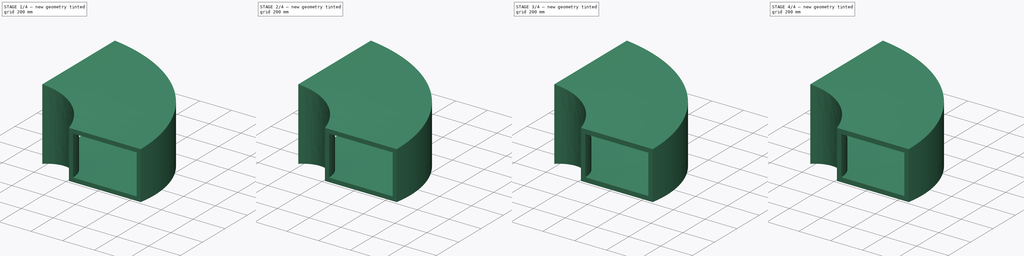
[diagram: build sequence overview — one tinted view per stage of 4, left to right]
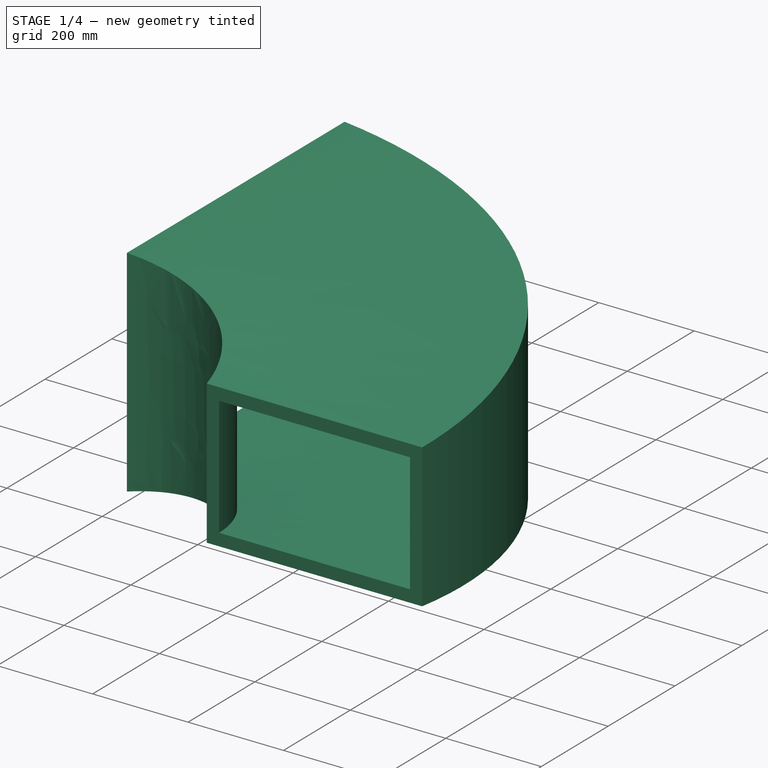
[diagram: stage 1 of 4 — iso view after this stage's code; geometry added in this stage tinted green]
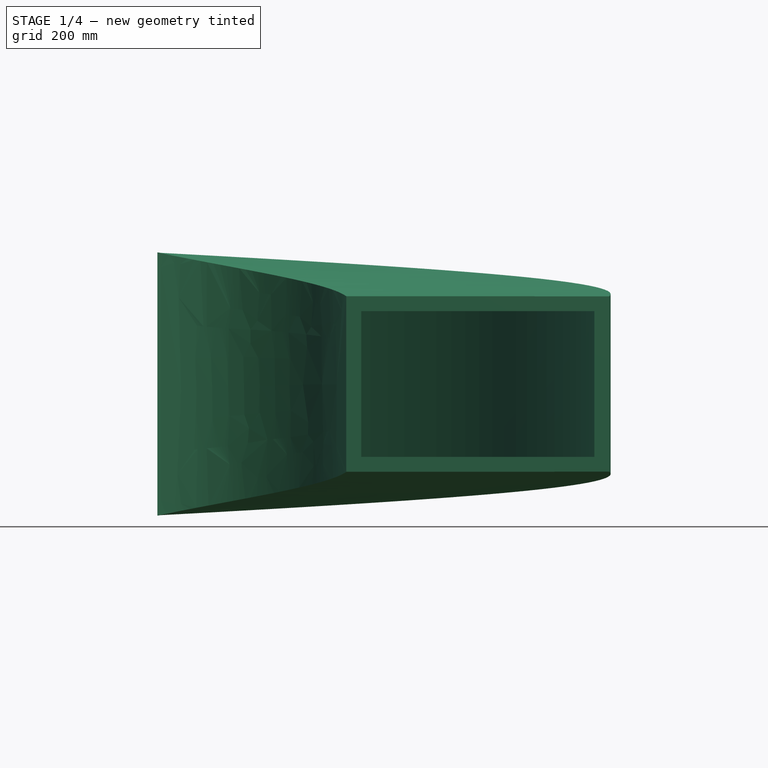
[diagram: stage 1 of 4 — front view after this stage's code; geometry added in this stage tinted green]
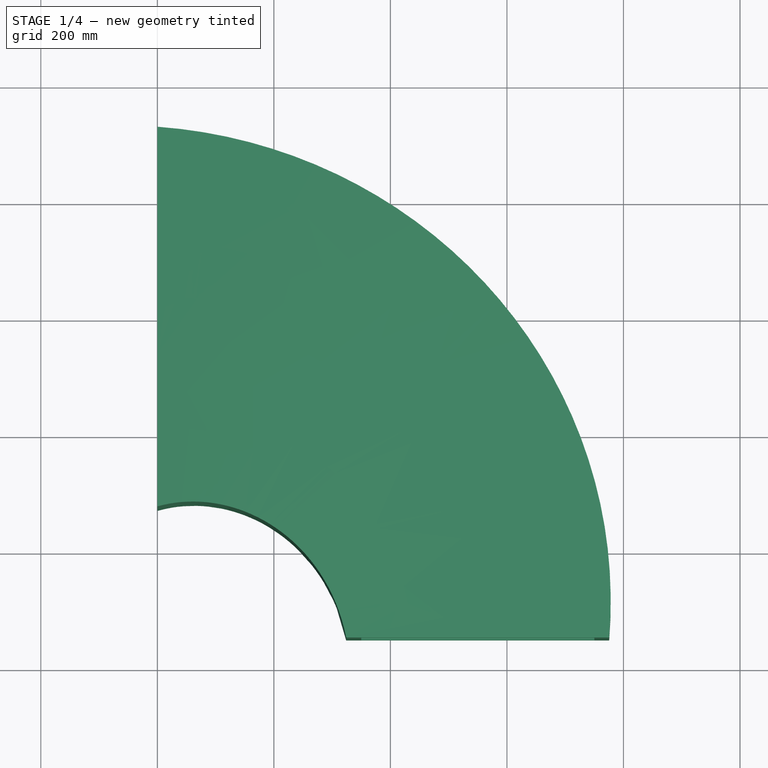
[diagram: stage 1 of 4 — top view after this stage's code; geometry added in this stage tinted green]
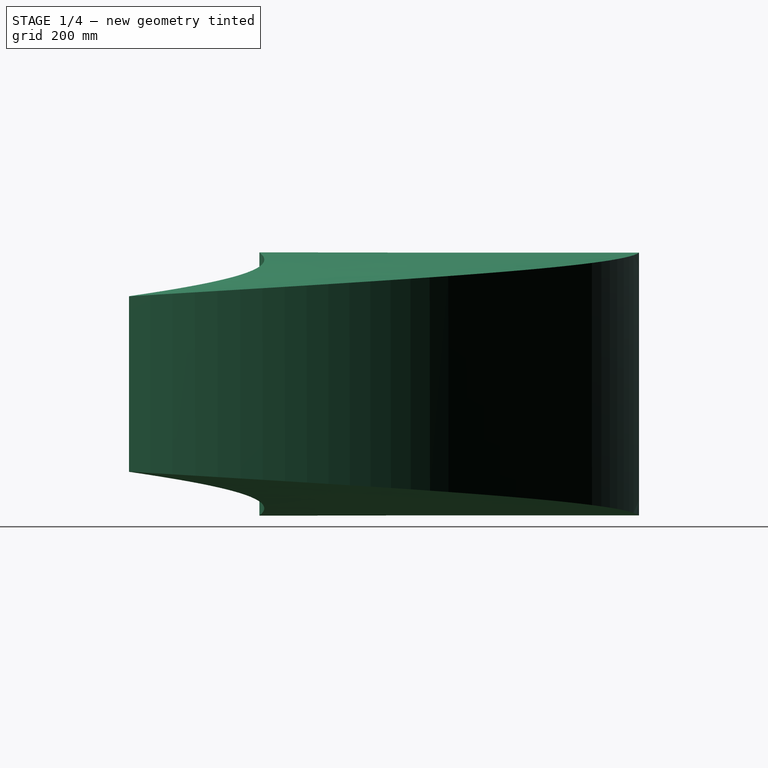
[diagram: stage 1 of 4 — right view after this stage's code; geometry added in this stage tinted green]
FCSTD DOCUMENT  (FreeCAD 0.16R6704 (Git))
Label: Radius_elbow_transition
License: All rights reserved
LicenseURL: http://en.wikipedia.org/wiki/All_rights_reserved
objects: App::DocumentObjectGroup×7, Sketcher::SketchObject×5, Part::FeaturePython×4, Part::Extrusion×3, Part::Sweep×2, Part::Thickness×2, Part::Cut×2, Part::MultiFuse×1, Spreadsheet::Sheet×1
note: 19 computed .brp shape members not serialized (recipe doc carries the construction recipe); baked Part::Feature solids carry a one-line shape summary decoded from their .brp

FEATURE [Sketcher::SketchObject] Sketch004  label="ANGLE_RADIUS_conector"
  expr: Constraints.Angle_curvature = Settings_rectangular_conection.a_curvature
  expr: Constraints.Radius_axis = Settings_rectangular_conection.r_axis
  sketch-geometry (3):
    g0: LineSegment [constr] StartX=0 StartY=0 StartZ=0 EndX=-5.7e-11 EndY=-550 EndZ=0
    g1: LineSegment [constr] StartX=-5.7e-11 StartY=-550 StartZ=0 EndX=550 EndY=-550 EndZ=0
    g2: ArcOfCircle CenterX=-5.7e-11 CenterY=-550 CenterZ=0 NormalX=0 NormalY=0 NormalZ=1 Radius=550 StartAngle=0 EndAngle=1.5708
  constraints (9):
    c: Coincident(g0,g1)
    c: Coincident(g2,g0)
    c: Coincident(g2,g0)
    c: Coincident(g2,g1)
    c: Angle(g0) = -1.5708
    c: Angle(g1,g0) = 1.5708  'Angle_curvature'
    c: Radius(g2) = 550  'Radius_axis'
    c: DistanceX(g-1,g0) = 0
    c: DistanceY(g0,g-1) = 0
FEATURE [Sketcher::SketchObject] Sketch015  label="DIMENSIONS_rectangle_01"
  Placement = pos=(0,0,0) rot=(0.57735,0.57735,0.57735;2.0944rad)
  expr: Constraints.Duct_heigth = Settings_rectangular_conection.h_side_1
  expr: Constraints.Duct_width = Settings_rectangular_conection.w_side_1
  sketch-geometry (7):
    g0: LineSegment StartX=-300 StartY=200 StartZ=0 EndX=300 EndY=200 EndZ=0
    g1: LineSegment StartX=300 StartY=200 StartZ=0 EndX=300 EndY=-200 EndZ=0
    g2: LineSegment StartX=300 StartY=-200 StartZ=0 EndX=-300 EndY=-200 EndZ=0
    g3: LineSegment StartX=-300 StartY=-200 StartZ=0 EndX=-300 EndY=200 EndZ=0
    g4: LineSegment [constr] StartX=-300 StartY=200 StartZ=0 EndX=300 EndY=-200 EndZ=0
    g5: LineSegment [constr] StartX=-300 StartY=-200 StartZ=0 EndX=300 EndY=200 EndZ=0
    g6: GeomPoint [constr] X=0 Y=0 Z=0
  constraints (18):
    c: Coincident(g0,g1)
    c: Coincident(g1,g2)
    c: Coincident(g2,g3)
    c: Coincident(g3,g0)
    c: Horizontal(g0)
    c: Horizontal(g2)
    c: Vertical(g1)
    c: Vertical(g3)
    c: DistanceX(g0,g0) = 600  'Duct_width'
    c: DistanceY(g1,g1) = 400  'Duct_heigth'
    c: Coincident(g4,g0)
    c: Coincident(g4,g1)
    c: Coincident(g5,g2)
    c: Coincident(g5,g0)
    c: PointOnObject(g6,g4)
    c: PointOnObject(g6,g5)
    c: DistanceY(g-1,g6) = 0  'Vertical_distance_axis'
    c: DistanceX(g-1,g6) = 0  'Horizontal_distance_axis'
FEATURE [Part::Sweep] Sweep005  label="Base_01"
  Frenet = false
  Sections = -> [Sketch015]
  Solid = true
  Spine = -> Sketch004
  Transition = 1
FEATURE [Sketcher::SketchObject] Sketch025  label="DIMENSIONS_rectangle_02"
  ExternalGeometry = -> [Sweep005]
  Placement = pos=(0,-550,0) rot=(1,0,0;1.5708rad)
  Support = -> Sweep005 [Face5]
  expr: Constraints.Vertical_distance_axis = Settings_rectangular_conection.d_v_axis_02
  expr: Constraints.Duct_height = Settings_rectangular_conection.h_side_2
  expr: Constraints.Duct_width = Settings_rectangular_conection.w_side_2
  expr: Constraints.Horizontal_distance_axis = Settings_rectangular_conection.d_h_axis_02
  sketch-geometry (10):
    g0: LineSegment [constr] StartX=250 StartY=200 StartZ=0 EndX=850 EndY=-200 EndZ=0
    g1: LineSegment [constr] StartX=250 StartY=-200 StartZ=0 EndX=850 EndY=200 EndZ=0
    g2: GeomPoint [constr] X=550 Y=0 Z=0
    g3: LineSegment StartX=350 StartY=125 StartZ=0 EndX=750 EndY=125 EndZ=0
    g4: LineSegment StartX=750 StartY=125 StartZ=0 EndX=750 EndY=-125 EndZ=0
    g5: LineSegment StartX=750 StartY=-125 StartZ=0 EndX=350 EndY=-125 EndZ=0
    g6: LineSegment StartX=350 StartY=-125 StartZ=0 EndX=350 EndY=125 EndZ=0
    g7: LineSegment [constr] StartX=350 StartY=125 StartZ=0 EndX=750 EndY=-125 EndZ=0
    g8: LineSegment [constr] StartX=350 StartY=-125 StartZ=0 EndX=750 EndY=125 EndZ=0
    g9: GeomPoint [constr] X=550 Y=0 Z=0
  constraints (24):
    c: Coincident(g0,g-4)
    c: Coincident(g0,g-6)
    c: Coincident(g1,g-6)
    c: Coincident(g1,g-5)
    c: PointOnObject(g2,g1)
    c: PointOnObject(g2,g0)
    c: Coincident(g3,g4)
    c: Coincident(g4,g5)
    c: Coincident(g5,g6)
    c: Coincident(g6,g3)
    c: Horizontal(g3)
    c: Horizontal(g5)
    c: Vertical(g4)
    c: Vertical(g6)
    c: Coincident(g7,g3)
    c: Coincident(g7,g4)
    c: Coincident(g8,g5)
    c: Coincident(g8,g3)
    c: PointOnObject(g9,g7)
    c: PointOnObject(g9,g8)
    c: DistanceX(g3,g3) = 400  'Duct_width'
    c: DistanceY(g4,g4) = 250  'Duct_height'
    c: DistanceX(g2,g9) = 0  'Horizontal_distance_axis'
    c: DistanceY(g2,g9) = 0  'Vertical_distance_axis'
FEATURE [Part::Sweep] Sweep015  label="Base_02 "
  Frenet = false
  Sections = -> [Sketch015,Sketch025]
  Solid = true
  Spine = -> Sketch004 [Edge1]
  Transition = 1
FEATURE [Sketcher::SketchObject] Sketch027  label="FLANGE_HEIGHT_01"
  ExternalGeometry = -> [Sweep005]
  Placement = pos=(0,0,0) rot=(-0.57735,0.57735,0.57735;4.18879rad)
  Support = -> Sweep005 [Face6]
  expr: Constraints.Flange_01 = Settings_rectangular_conection.flange_height
  sketch-geometry (12):
    g0: LineSegment StartX=-300 StartY=200 StartZ=0 EndX=300 EndY=200 EndZ=0
    g1: LineSegment StartX=300 StartY=200 StartZ=0 EndX=300 EndY=-200 EndZ=0
    g2: LineSegment StartX=300 StartY=-200 StartZ=0 EndX=-300 EndY=-200 EndZ=0
    g3: LineSegment StartX=-300 StartY=-200 StartZ=0 EndX=-300 EndY=200 EndZ=0
    g4: LineSegment StartX=-325 StartY=225 StartZ=0 EndX=325 EndY=225 EndZ=0
    g5: LineSegment StartX=325 StartY=225 StartZ=0 EndX=325 EndY=-225 EndZ=0
    g6: LineSegment StartX=325 StartY=-225 StartZ=0 EndX=-325 EndY=-225 EndZ=0
    g7: LineSegment StartX=-325 StartY=-225 StartZ=0 EndX=-325 EndY=225 EndZ=0
    g8: LineSegment [constr] StartX=-325 StartY=200 StartZ=0 EndX=-300 EndY=200 EndZ=0
    g9: LineSegment [constr] StartX=-300 StartY=200 StartZ=0 EndX=-300 EndY=225 EndZ=0
    g10: LineSegment [constr] StartX=300 StartY=-200 StartZ=0 EndX=325 EndY=-200 EndZ=0
    g11: LineSegment [constr] StartX=300 StartY=-200 StartZ=0 EndX=300 EndY=-225 EndZ=0
  constraints (38):
    c: Coincident(g0,g1)
    c: Coincident(g1,g2)
    c: Coincident(g2,g3)
    c: Coincident(g3,g0)
    c: Horizontal(g0)
    c: Horizontal(g2)
    c: Vertical(g1)
    c: Vertical(g3)
    c: Coincident(g4,g5)
    c: Coincident(g5,g6)
    c: Coincident(g6,g7)
    c: Coincident(g7,g4)
    c: Horizontal(g4)
    c: Horizontal(g6)
    c: Vertical(g5)
    c: Vertical(g7)
    c: DistanceX(g4,g0) = 25  'Flange_01'
    c: PointOnObject(g8,g7)
    c: PointOnObject(g8,g3)
    c: PointOnObject(g10,g1)
    c: PointOnObject(g11,g2)
    c: PointOnObject(g11,g6)
    c: Angle(g9) = 1.5708
    c: PointOnObject(g9,g4)
    c: PointOnObject(g9,g0)
    c: Angle(g8) = 0
    c: PointOnObject(g10,g5)
    c: Angle(g10) = 0
    c: Angle(g11) = -1.5708
    c: Coincident(g11,g1)
    c: Coincident(g10,g1)
    c: Coincident(g0,g9)
    c: Coincident(g0,g8)
    c: Equal(g9,g8)
    c: Equal(g8,g10)
    c: Equal(g10,g11)
    c: Coincident(g-5,g0)
    c: Coincident(g-6,g2)
FEATURE [App::DocumentObjectGroup] Grupo011  label="A-Bases"
  Group = -> [Sweep005,Sketch025,Extrude_Sketch025,Sketch026,Sketch027,Sweep015,Sketch004]
FEATURE [Part::Extrusion] Extrude_Sketch027  label="Flange_THICKNESS_01"
  Base = -> Sketch027
  Dir = (2,0,0)
  Solid = true
  expr: Dir.x = Settings_rectangular_conection.flange_thickness
FEATURE [Part::Thickness] Thickness009  label="2.1-Isolamento_ESPESSURA (Insulation_THICKNESS) 002"
  Faces = -> Sweep015 [Face6,Face5]
  Intersection = false
  Join = 2
  Mode = 1
  SelfIntersection = false
  Value = 25.4
  expr: Value = Settings_rectangular_conection.insu_thickness
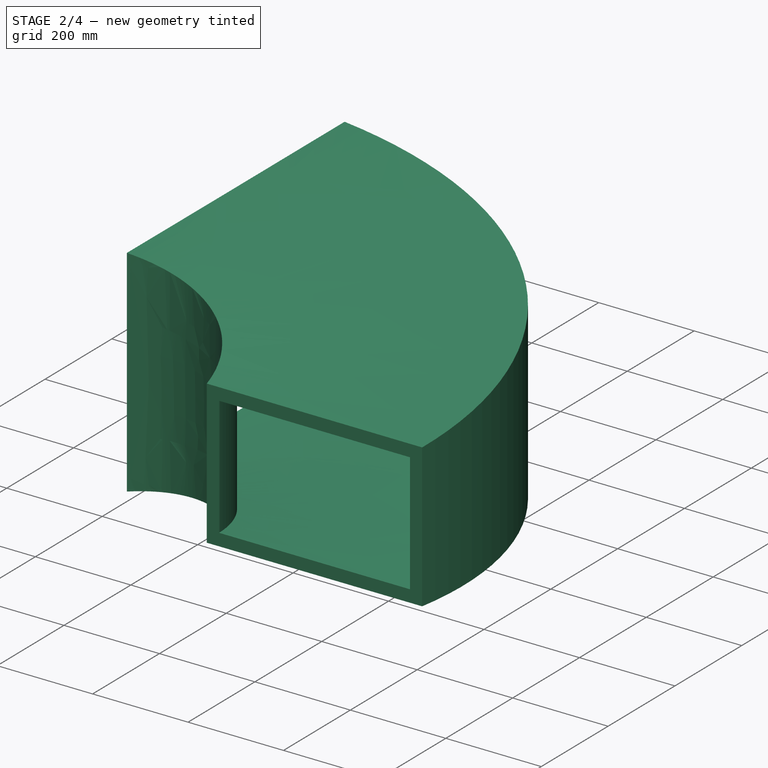
[diagram: stage 2 of 4 — iso view after this stage's code; geometry added in this stage tinted green]
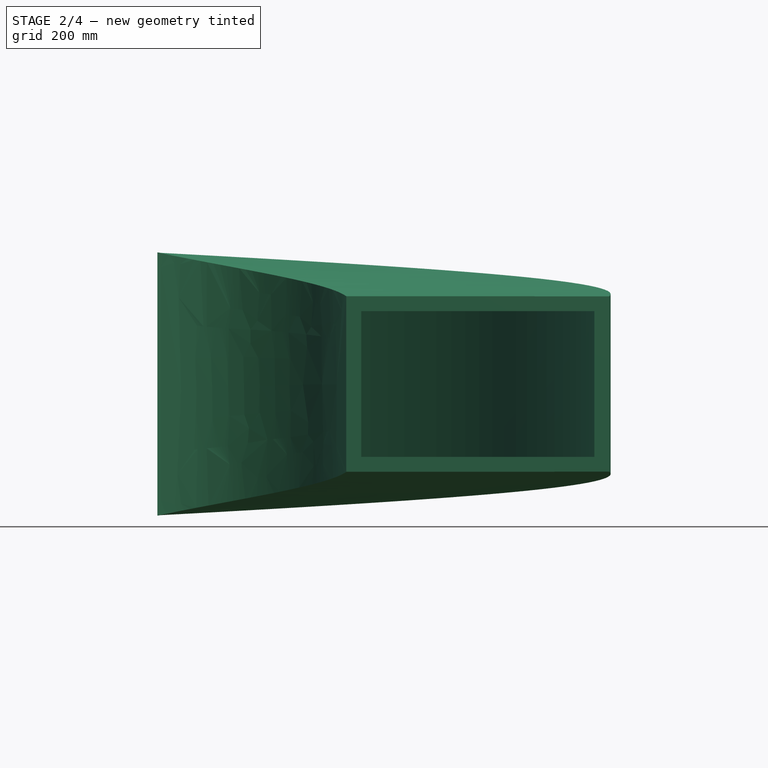
[diagram: stage 2 of 4 — front view after this stage's code; geometry added in this stage tinted green]
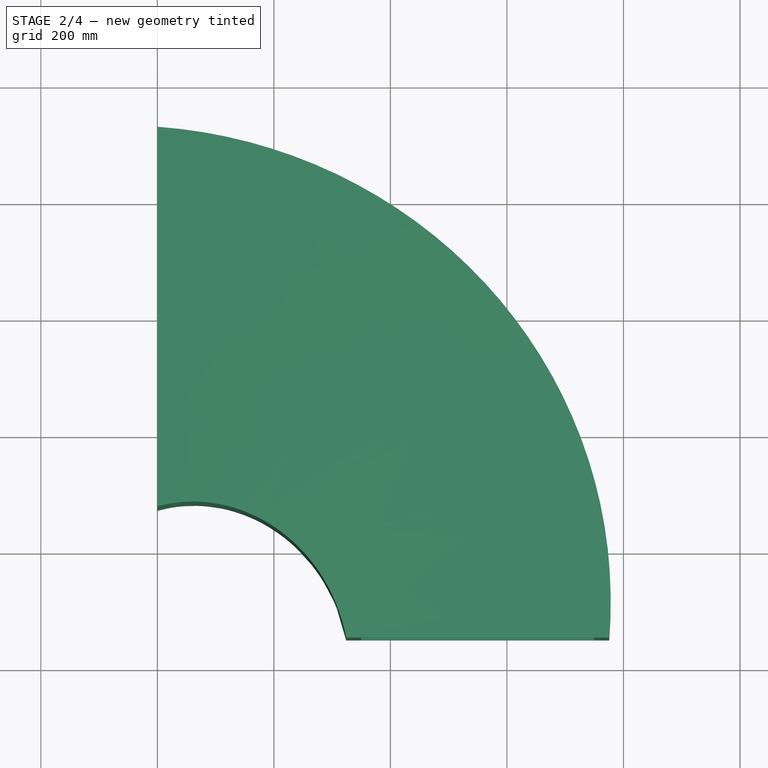
[diagram: stage 2 of 4 — top view after this stage's code; geometry added in this stage tinted green]
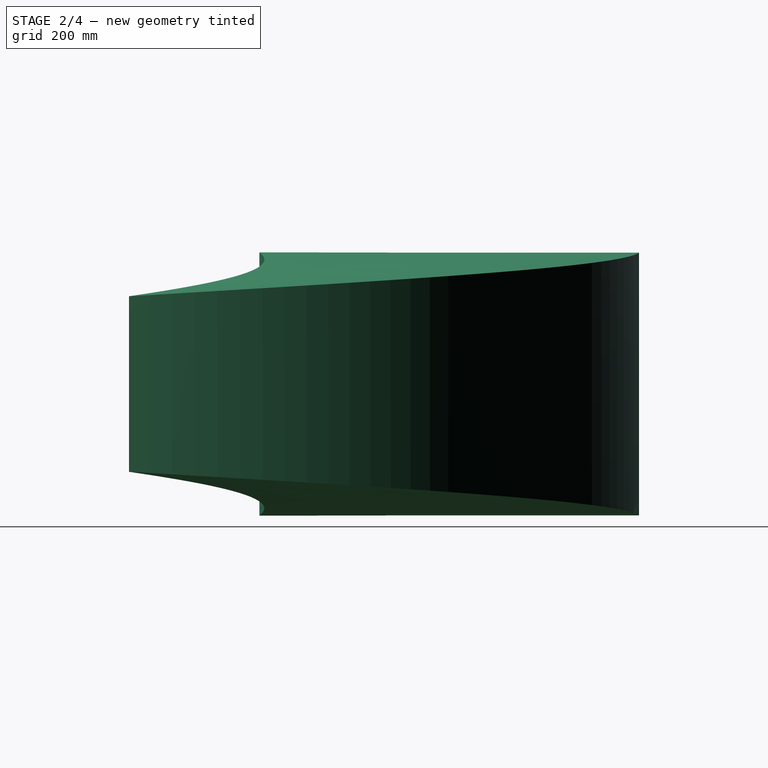
[diagram: stage 2 of 4 — right view after this stage's code; geometry added in this stage tinted green]
FEATURE [Part::Extrusion] Extrude_Sketch025  label="Base_flange_02"
  Base = -> Sketch025
  Dir = (0,10,0)
  Solid = true
FEATURE [Sketcher::SketchObject] Sketch026  label="FLANGE_HEIGHT_02"
  ExternalGeometry = -> [Extrude_Sketch025]
  Placement = pos=(0,-550,0) rot=(1,0,0;1.5708rad)
  Support = -> Extrude_Sketch025 [Face5]
  expr: Constraints.Flange_02 = Settings_rectangular_conection.flange_height
  sketch-geometry (12):
    g0: LineSegment StartX=350 StartY=125 StartZ=0 EndX=750 EndY=125 EndZ=0
    g1: LineSegment StartX=750 StartY=125 StartZ=0 EndX=750 EndY=-125 EndZ=0
    g2: LineSegment StartX=750 StartY=-125 StartZ=0 EndX=350 EndY=-125 EndZ=0
    g3: LineSegment StartX=350 StartY=-125 StartZ=0 EndX=350 EndY=125 EndZ=0
    g4: LineSegment StartX=325 StartY=150 StartZ=0 EndX=775 EndY=150 EndZ=0
    g5: LineSegment StartX=775 StartY=150 StartZ=0 EndX=775 EndY=-150 EndZ=0
    g6: LineSegment StartX=775 StartY=-150 StartZ=0 EndX=325 EndY=-150 EndZ=0
    g7: LineSegment StartX=325 StartY=-150 StartZ=0 EndX=325 EndY=150 EndZ=0
    g8: LineSegment [constr] StartX=350 StartY=125 StartZ=0 EndX=325 EndY=125 EndZ=0
    g9: LineSegment [constr] StartX=350 StartY=125 StartZ=0 EndX=350 EndY=150 EndZ=0
    g10: LineSegment [constr] StartX=750 StartY=-125 StartZ=0 EndX=775 EndY=-125 EndZ=0
    g11: LineSegment [constr] StartX=750 StartY=-125 StartZ=0 EndX=750 EndY=-150 EndZ=0
  constraints (38):
    c: Coincident(g0,g1)
    c: Coincident(g1,g2)
    c: Coincident(g2,g3)
    c: Coincident(g3,g0)
    c: Horizontal(g0)
    c: Horizontal(g2)
    c: Vertical(g1)
    c: Vertical(g3)
    c: Coincident(g4,g5)
    c: Coincident(g5,g6)
    c: Coincident(g6,g7)
    c: Coincident(g7,g4)
    c: Horizontal(g4)
    c: Horizontal(g6)
    c: Vertical(g5)
    c: Vertical(g7)
    c: DistanceX(g4,g0) = 25  'Flange_02'
    c: PointOnObject(g8,g3)
    c: PointOnObject(g8,g7)
    c: PointOnObject(g9,g4)
    c: Angle(g9) = 1.5708
    c: PointOnObject(g9,g0)
    c: Angle(g8) = 3.14159
    c: Coincident(g0,g8)
    c: Coincident(g0,g9)
    c: PointOnObject(g10,g1)
    c: Angle(g10) = 0
    c: PointOnObject(g10,g5)
    c: PointOnObject(g11,g2)
    c: PointOnObject(g11,g6)
    c: Angle(g11) = -1.5708
    c: Coincident(g10,g1)
    c: Coincident(g11,g1)
    c: Equal(g10,g11)
    c: Equal(g11,g8)
    c: Equal(g8,g9)
    c: Coincident(g0,g-6)
    c: Coincident(g-5,g2)
FEATURE [Part::Extrusion] Extrude_Sketch026  label="Flange_THICKNESS_02"
  Base = -> Sketch026
  Dir = (0,2,0)
  Solid = true
  expr: Dir.y = Settings_rectangular_conection.flange_thickness
FEATURE [Part::Cut] Cut008  label="Cut "
  Base = -> Thickness009
  Tool = -> Extrude_Sketch027
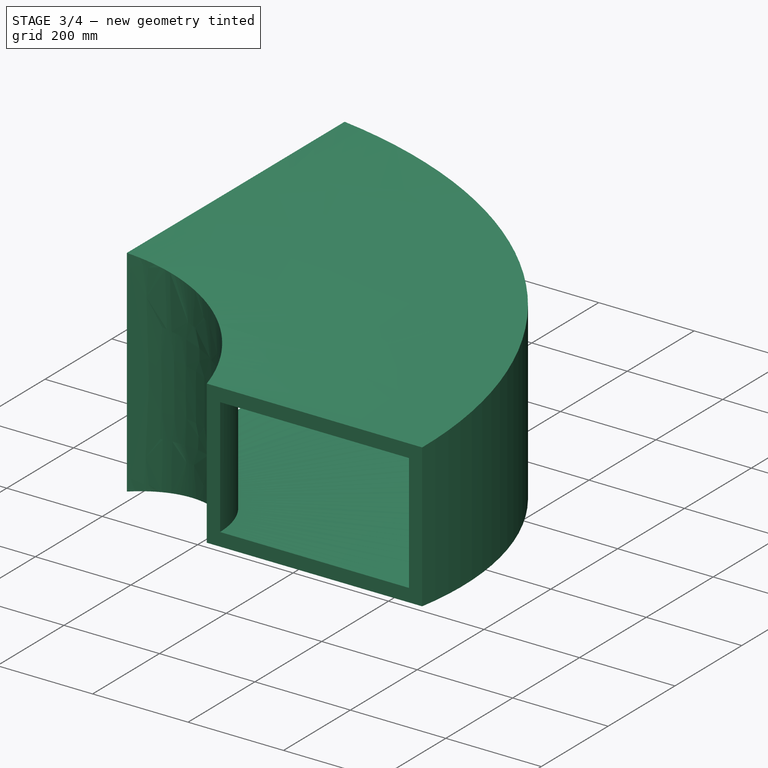
[diagram: stage 3 of 4 — iso view after this stage's code; geometry added in this stage tinted green]
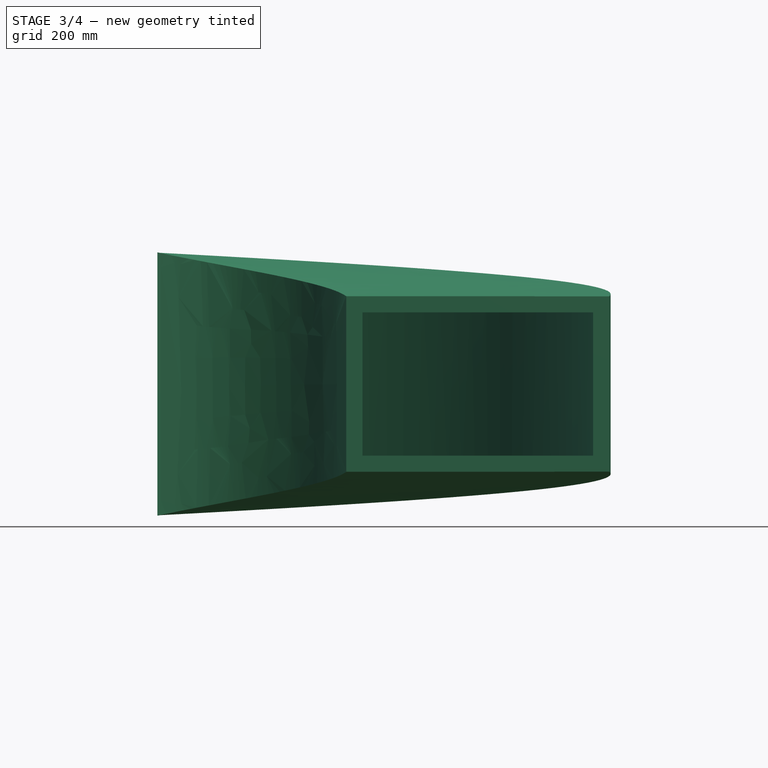
[diagram: stage 3 of 4 — front view after this stage's code; geometry added in this stage tinted green]
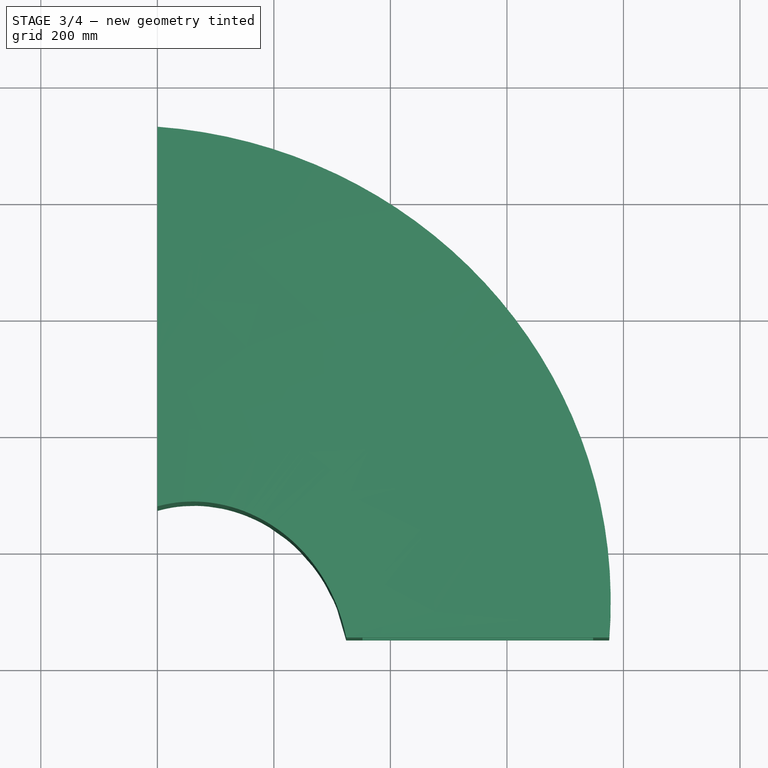
[diagram: stage 3 of 4 — top view after this stage's code; geometry added in this stage tinted green]
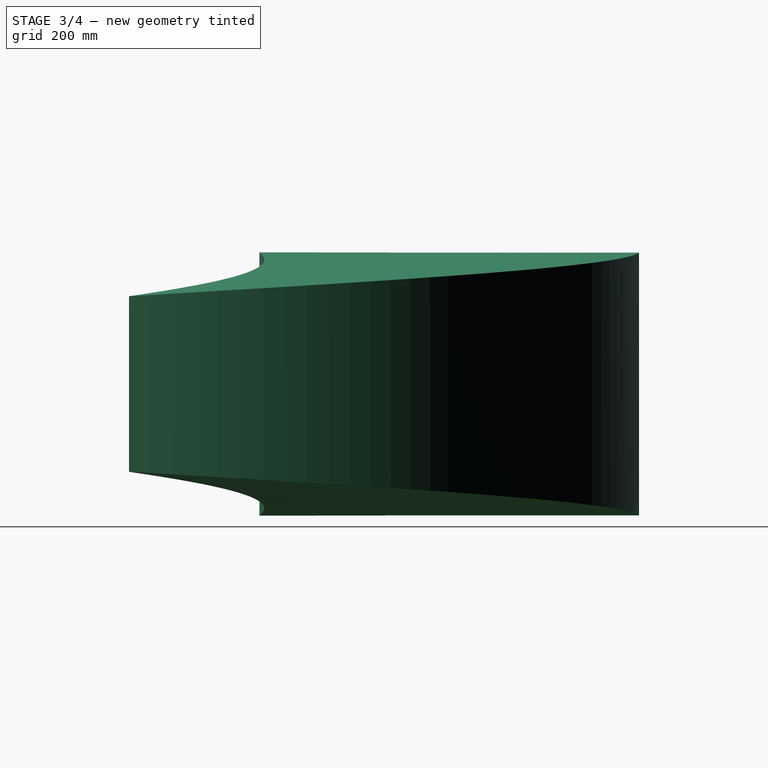
[diagram: stage 3 of 4 — right view after this stage's code; geometry added in this stage tinted green]
FEATURE [Part::Thickness] Thickness008  label="1.1-Rectangular_bend_SHEET_THICKNESS"
  Faces = -> Sweep015 [Face6,Face5]
  Intersection = false
  Join = 2
  Mode = 1
  SelfIntersection = false
  Value = -2
  expr: Value = Settings_rectangular_conection.sheet_thickness * -1
FEATURE [Part::MultiFuse] Fusion003  label="01-Bend_rectangular_flanges"
  Shapes = -> [Thickness008,Extrude_Sketch026,Extrude_Sketch027]
FEATURE [Part::Cut] Cut009  label="02-Insulation"
  Base = -> Cut008
  Tool = -> Extrude_Sketch026
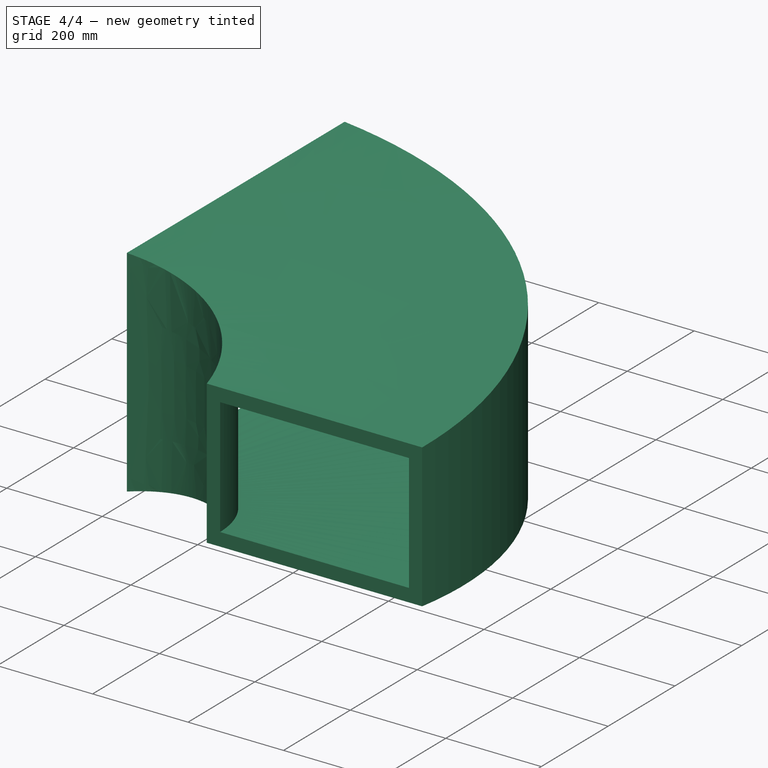
[diagram: stage 4 of 4 — iso view after this stage's code; geometry added in this stage tinted green]
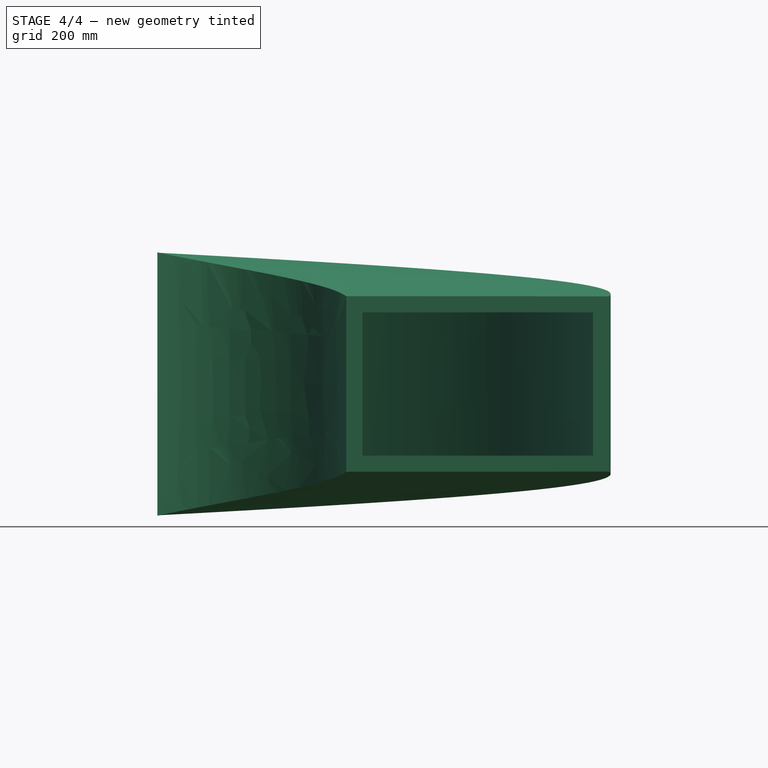
[diagram: stage 4 of 4 — front view after this stage's code; geometry added in this stage tinted green]
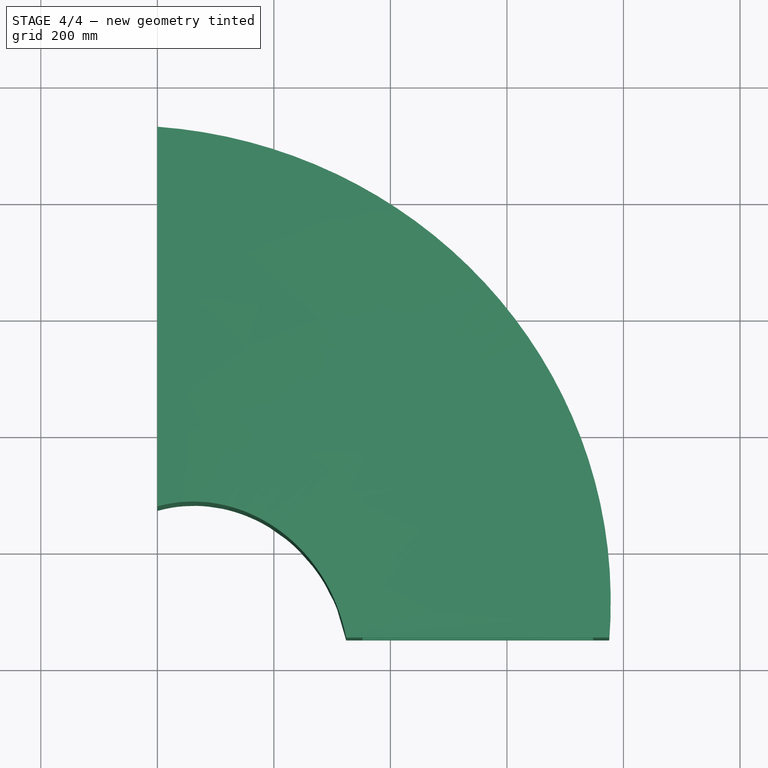
[diagram: stage 4 of 4 — top view after this stage's code; geometry added in this stage tinted green]
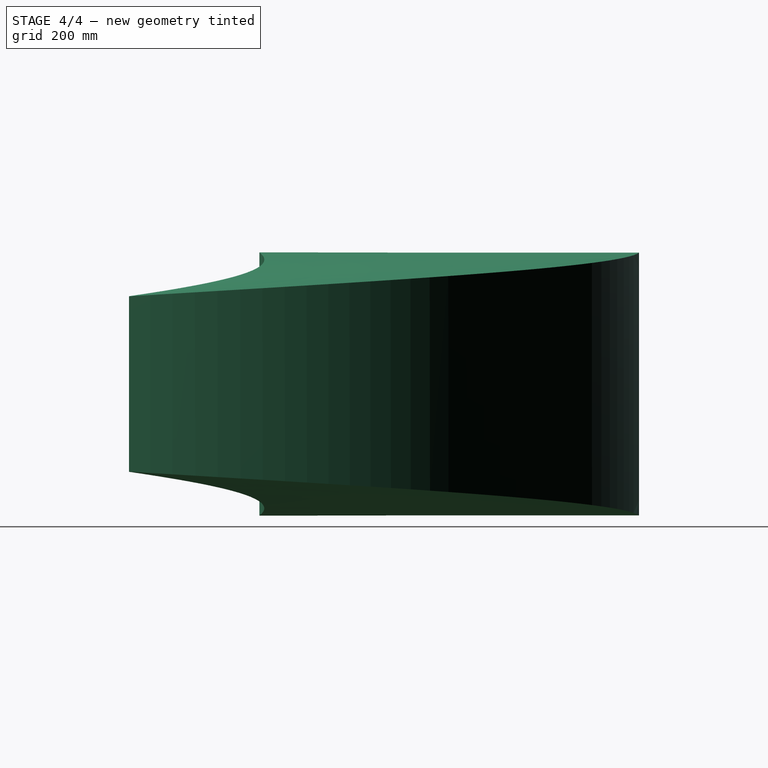
[diagram: stage 4 of 4 — right view after this stage's code; geometry added in this stage tinted green]
FEATURE [App::DocumentObjectGroup] Grupo022  label="B-Parts"
  Group = -> [Fusion003,Cut009]
FEATURE [Part::FeaturePython] Clone  label="Clone of 01-Bend_rectangular_flanges"  # Draft clone (typed FeaturePython)
  Objects = -> [Fusion003]
  Scale = (1,1,1)
FEATURE [Part::FeaturePython] Clone001  label="Clone of 02-Insulation"  # Draft clone (typed FeaturePython)
  Objects = -> [Cut009]
  Scale = (1,1,1)
FEATURE [Part::FeaturePython] Clone002  label="Clone of 1.1-Rectangular_bend_SHEET_THICKNESS"  # Draft clone (typed FeaturePython)
  Objects = -> [Thickness008]
  Scale = (1,1,1)
FEATURE [Part::FeaturePython] Clone003  label="Clone of 2.1-Insulation"  # Draft clone (typed FeaturePython)
  Objects = -> [Thickness009]
  Scale = (1,1,1)
FEATURE [App::DocumentObjectGroup] Grupo024  label="No_flanges"
  Group = -> [Clone002,Clone003]
FEATURE [App::DocumentObjectGroup] Grupo025  label="Flanges"
  Group = -> [Clone,Clone001]
FEATURE [App::DocumentObjectGroup] Grupo023  label="B-Final_parts_clones"
  Group = -> [Grupo024,Grupo025]
FEATURE [App::DocumentObjectGroup] Group013  label="A-Components"
  Group = -> [Grupo011,Grupo022]
FEATURE [Spreadsheet::Sheet] Spreadsheet005  label="Settings_rectangular_conection"
  cells = A1=Dimensionamento - Settings; A3=01. Lado 1 - Side 1; A4=1.1. Largura do lado 1 - Width side 1:; B4(w_side_1)=600; C4=Alias: w_side_1; A5=1.2. Altura do lado 1 - Height side 1:; B5(h_side_1)=400; C5=Alias: h_side_1; A7=02. Lado 2 - Side 2; A8=2.1. Largura do lado 2 - Width side 2:; B8(w_side_2)=400; C8=Alias: w_side_2; A9=2.2. Altura do lado 2 - Height side 2:; B9(h_side_2)=250; C9=Alias: h_side_2; A10=2.3. Distância horizontal do eixo - Horizontal distance axis:; B10(d_h_axis_02)=0; C10=Alias: d_h_axis_02; A11=2.4. Distância vertical do eixo - Vertical distance axis:; B11(d_v_axis_02)=0; C11=Alias: d_v_axis_02; A13=03. Ângulos e raios de curvaturas - Angles and curvature radius; A14=3.1. Ângulo da curvatura - Curvature angle:; B14(a_curvature)=90; C14=Alias: a_curvature; A15=3.2. Raio do eixo - Axis radius:; B15(r_axis)=550; C15=Alias: r_axis; A17=04. Espessura da chapa - Sheet thickness:; B17(sheet_thickness)=2; C17=Alias: sheet_thickness; A19=05. Flanges; A20=5.1. Altura flanges - Flanges height:; B20(flange_height)=25; C20=Alias: flange_height; A21=5.2. Espessura flanges - Flanges thickness:; B21(flange_thickness)=2; C21=Alias: flange_thickness; A23=06. Espessura isolamento - Insulation thickness:; B23(insu_thickness)=25.4; C23=Alias: insu_thickness
FEATURE [App::DocumentObjectGroup] Grupo005  label="Radius_elbow_transition"
  Group = -> [Spreadsheet005,Group013,Grupo023]
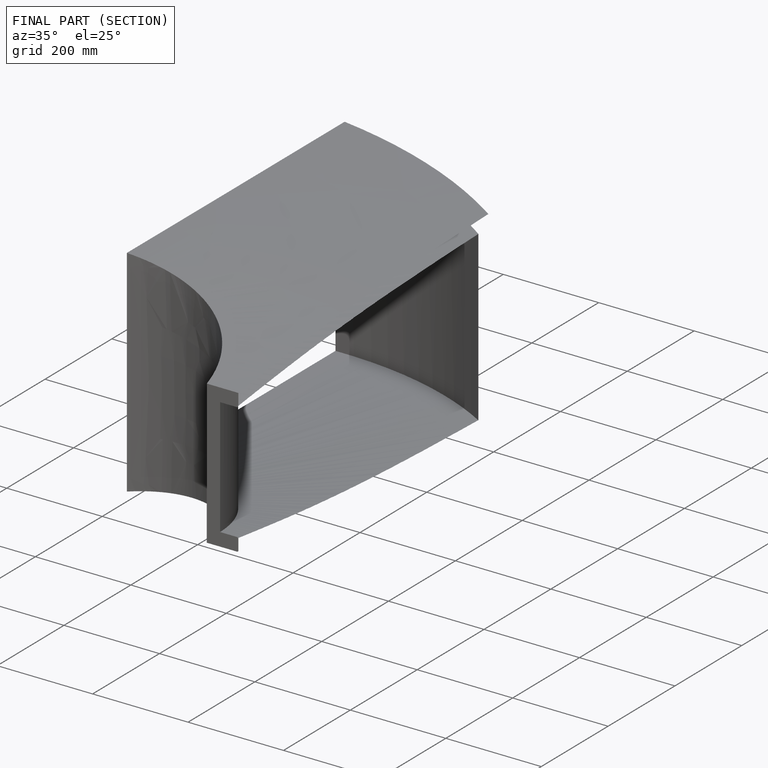
[diagram: finished part — half-section view (interior)]
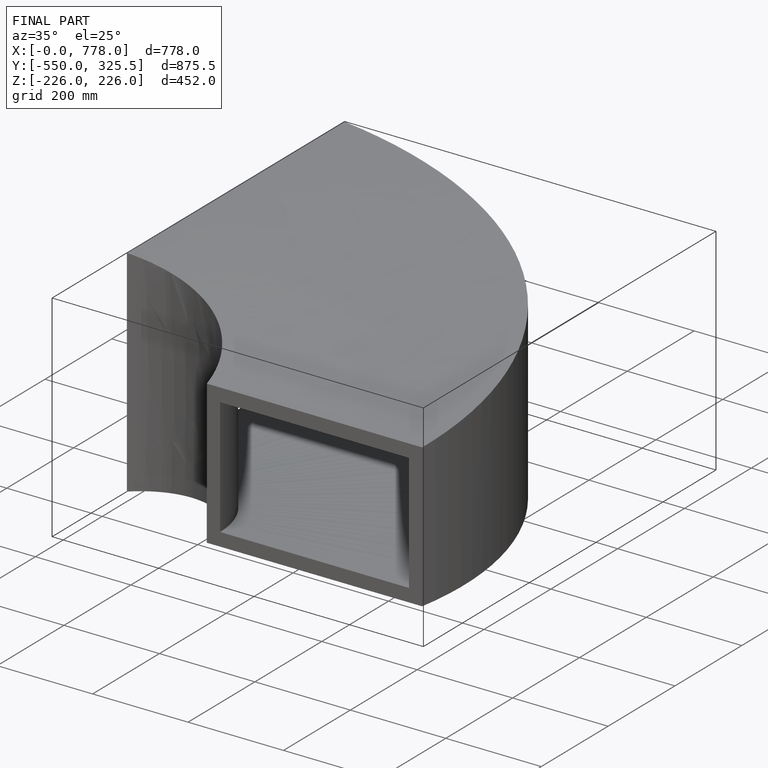
[diagram: finished part — iso view with bounding-box wireframe]
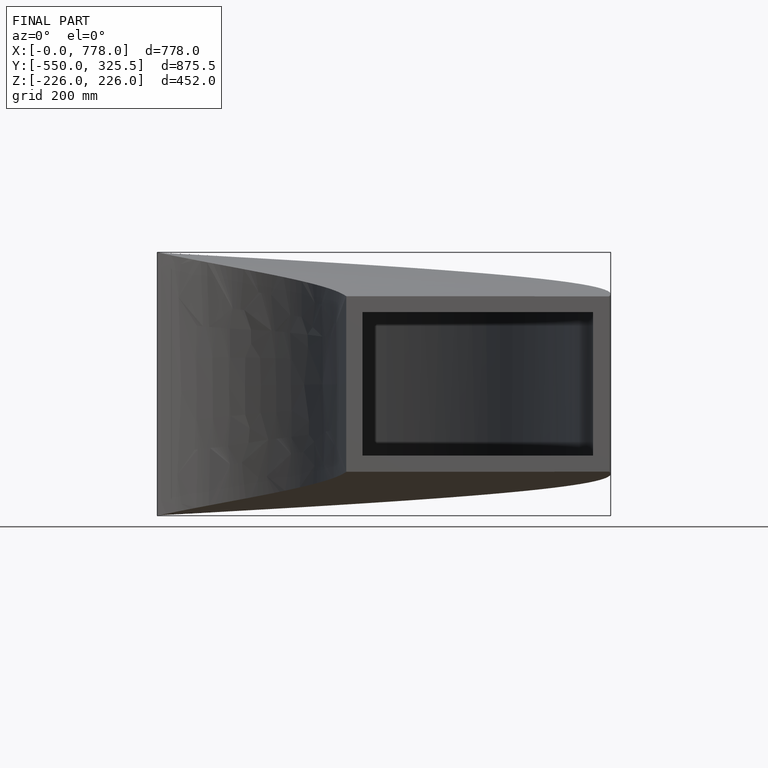
[diagram: finished part — front view with bounding-box wireframe]
